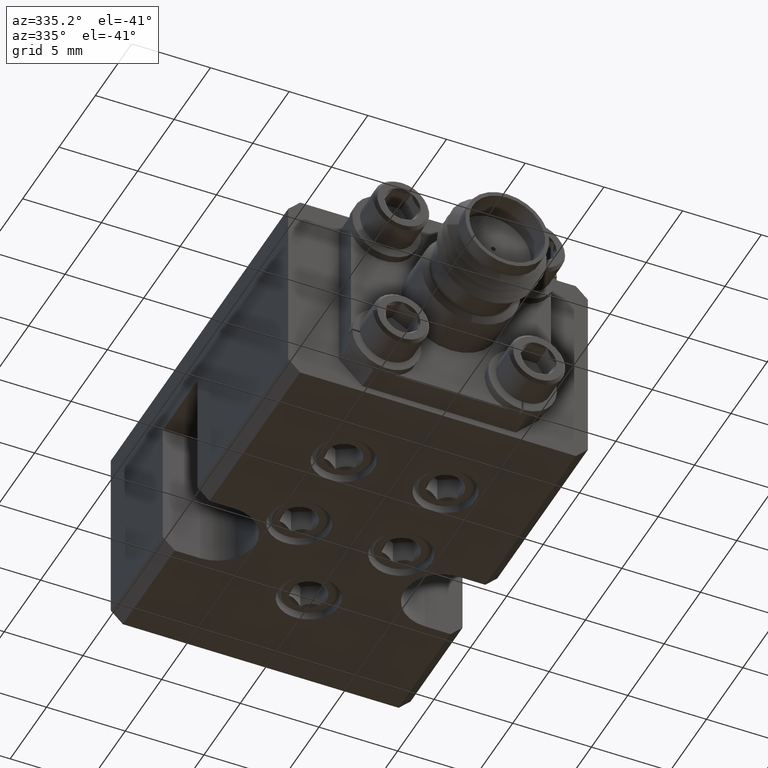
[diagram: clean part render]
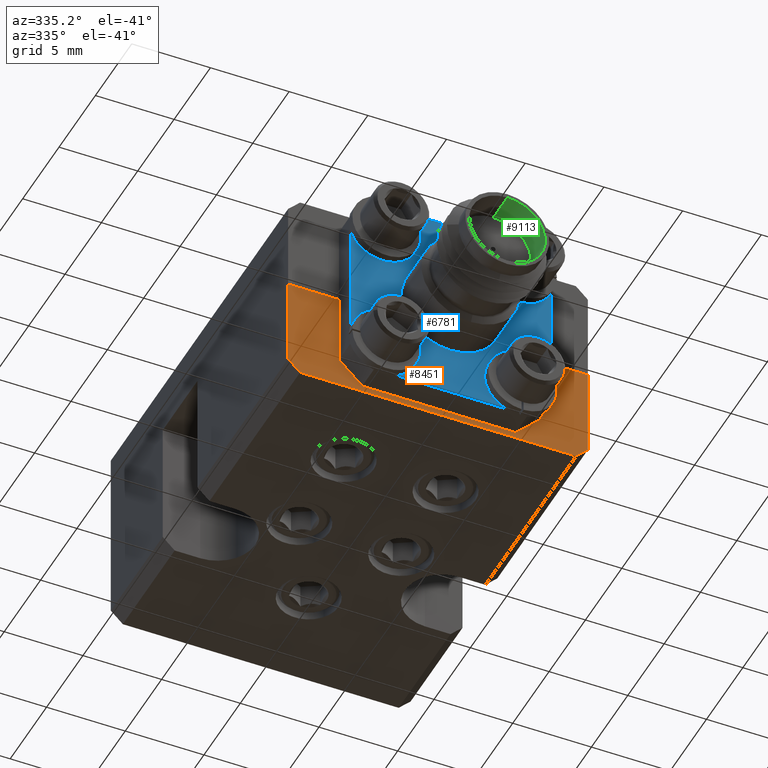
[diagram: same view with three faces highlighted in distinct colors, each labeled with its STEP entity id]
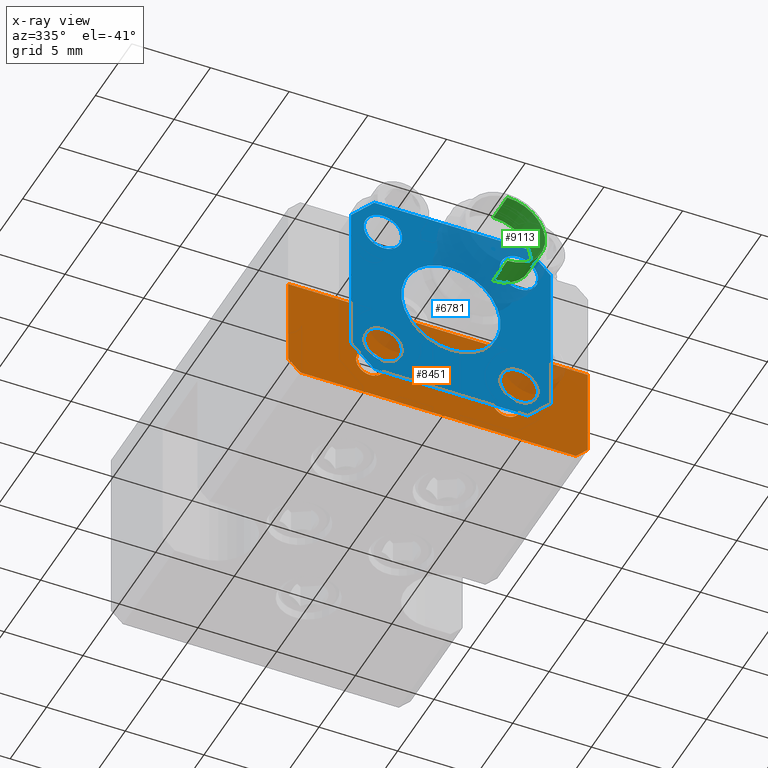
[diagram: x-ray of the same camera — body ghosted, the three highlighted faces saturated]
A machine part, auxiliary view with three faces highlighted in distinct colors.
The next image is the same camera in x-ray (body ghosted, the three faces saturated) — at least one of them is partly hidden behind the body in this view.
Their STEP definitions:

[orange] entity #8451 — the highlighted planar face has unit normal (0, 1, 0).
#103 = ORIENTED_EDGE ( 'NONE', *, *, #4005, .F. ) ;
#147 = VECTOR ( 'NONE', #2920, 39.37007874015748900 ) ;
#368 = CARTESIAN_POINT ( 'NONE',  ( -0.1700000000000001200, -0.4800000000000000900, -0.1989999999999999500 ) ) ;
#958 = LINE ( 'NONE', #3008, #1194 ) ;
#1053 = VERTEX_POINT ( 'NONE', #3262 ) ;
#1114 = VERTEX_POINT ( 'NONE', #2573 ) ;
#1141 = CARTESIAN_POINT ( 'NONE',  ( 0.1699999999999999300, -0.4800000000000000900, -0.1290000000000000000 ) ) ;
#1194 = VECTOR ( 'NONE', #5491, 39.37007874015748100 ) ;
#1424 = VERTEX_POINT ( 'NONE', #9617 ) ;
#1466 = EDGE_CURVE ( 'NONE', #6864, #3572, #2452, .T. ) ;
#1727 = AXIS2_PLACEMENT_3D ( 'NONE', #10114, #2250, #2149 ) ;
#1811 = CIRCLE ( 'NONE', #5899, 0.03499999999999996900 ) ;
#2131 = LINE ( 'NONE', #4830, #5337 ) ;
#2149 = DIRECTION ( 'NONE',  ( 0.0000000000000000000, 0.0000000000000000000, 1.000000000000000000 ) ) ;
#2250 = DIRECTION ( 'NONE',  ( -1.848892746611746400E-032, -1.000000000000000000, -2.775557561562888900E-017 ) ) ;
#2278 = EDGE_LOOP ( 'NONE', ( #103, #9000, #5832, #8949, #6912, #2923 ) ) ;
#2320 = EDGE_LOOP ( 'NONE', ( #7623, #3317 ) ) ;
#2452 = LINE ( 'NONE', #2891, #147 ) ;
#2573 = CARTESIAN_POINT ( 'NONE',  ( 0.3749999999999999400, -0.4800000000000001500, -0.2249999999999997600 ) ) ;
#2694 = EDGE_CURVE ( 'NONE', #6876, #10037, #5284, .T. ) ;
#2849 = DIRECTION ( 'NONE',  ( -1.000000000000000000, 1.821231995776175500E-016, 5.054934237236834900E-033 ) ) ;
#2891 = CARTESIAN_POINT ( 'NONE',  ( -0.3450000000000000800, -0.4799999999999999800, -0.2549999999999999500 ) ) ;
#2908 = FACE_BOUND ( 'NONE', #2320, .T. ) ;
#2920 = DIRECTION ( 'NONE',  ( 0.7071067811865459100, -1.146338099993378800E-016, -0.7071067811865490200 ) ) ;
#2923 = ORIENTED_EDGE ( 'NONE', *, *, #1466, .T. ) ;
#2928 = EDGE_CURVE ( 'NONE', #6864, #1053, #6489, .T. ) ;
#3008 = CARTESIAN_POINT ( 'NONE',  ( -0.3750000000000001100, -0.4799999999999999800, -0.2550000000000000000 ) ) ;
#3072 = CARTESIAN_POINT ( 'NONE',  ( -0.1700000000000001200, -0.4800000000000000900, -0.1639999999999999800 ) ) ;
#3262 = CARTESIAN_POINT ( 'NONE',  ( -0.3750000000000001100, -0.4799999999999999800, -1.332267629550186700E-017 ) ) ;
#3317 = ORIENTED_EDGE ( 'NONE', *, *, #3320, .F. ) ;
#3320 = EDGE_CURVE ( 'NONE', #1424, #7986, #1811, .T. ) ;
#3518 = ORIENTED_EDGE ( 'NONE', *, *, #5819, .F. ) ;
#3572 = VERTEX_POINT ( 'NONE', #3831 ) ;
#3616 = CARTESIAN_POINT ( 'NONE',  ( 0.3449999999999998100, -0.4800000000000001500, -0.2550000000000000000 ) ) ;
#3831 = CARTESIAN_POINT ( 'NONE',  ( -0.3450000000000000300, -0.4799999999999999800, -0.2550000000000000000 ) ) ;
#3904 = DIRECTION ( 'NONE',  ( 0.0000000000000000000, 0.0000000000000000000, 1.000000000000000000 ) ) ;
#4005 = EDGE_CURVE ( 'NONE', #5421, #3572, #958, .T. ) ;
#4229 = CARTESIAN_POINT ( 'NONE',  ( -0.1700000000000001200, -0.4800000000000000900, -0.1290000000000000000 ) ) ;
#4282 = VECTOR ( 'NONE', #5813, 39.37007874015748100 ) ;
#4357 = CARTESIAN_POINT ( 'NONE',  ( 0.1699999999999999300, -0.4800000000000000900, -0.1639999999999999800 ) ) ;
#4524 = AXIS2_PLACEMENT_3D ( 'NONE', #4940, #8908, #8800 ) ;
#4583 = CARTESIAN_POINT ( 'NONE',  ( 0.3749999999999999400, -0.4800000000000001500, -1.332267629550187000E-017 ) ) ;
#4830 = CARTESIAN_POINT ( 'NONE',  ( 0.3749999999999999400, -0.4800000000000001500, -0.2550000000000000000 ) ) ;
#4940 = CARTESIAN_POINT ( 'NONE',  ( -0.3750000000000001100, -0.4799999999999999800, -0.2550000000000000000 ) ) ;
#5071 = DIRECTION ( 'NONE',  ( 0.0000000000000000000, 0.0000000000000000000, 1.000000000000000000 ) ) ;
#5073 = CIRCLE ( 'NONE', #9933, 0.03499999999999996900 ) ;
#5082 = CARTESIAN_POINT ( 'NONE',  ( -0.3750000000000001100, -0.4799999999999999800, -0.2249999999999997600 ) ) ;
#5168 = DIRECTION ( 'NONE',  ( 0.7071067811865459100, -1.429272888661102300E-016, 0.7071067811865490200 ) ) ;
#5284 = CIRCLE ( 'NONE', #8077, 0.03499999999999996900 ) ;
#5337 = VECTOR ( 'NONE', #5562, 39.37007874015748100 ) ;
#5421 = VERTEX_POINT ( 'NONE', #9583 ) ;
#5442 = EDGE_CURVE ( 'NONE', #1114, #7704, #2131, .T. ) ;
#5491 = DIRECTION ( 'NONE',  ( -1.000000000000000000, 1.821231995776175500E-016, 5.054934237236834900E-033 ) ) ;
#5562 = DIRECTION ( 'NONE',  ( -4.513000746678564400E-017, -2.000651077005296400E-017, 1.000000000000000000 ) ) ;
#5813 = DIRECTION ( 'NONE',  ( -4.513000746678564400E-017, -2.000651077005296400E-017, 1.000000000000000000 ) ) ;
#5819 = EDGE_CURVE ( 'NONE', #10037, #6876, #7437, .T. ) ;
#5832 = ORIENTED_EDGE ( 'NONE', *, *, #5442, .T. ) ;
#5869 = EDGE_CURVE ( 'NONE', #5421, #1114, #8189, .T. ) ;
#5899 = AXIS2_PLACEMENT_3D ( 'NONE', #8220, #9781, #5071 ) ;
#6085 = VECTOR ( 'NONE', #5168, 39.37007874015748900 ) ;
#6365 = VECTOR ( 'NONE', #2849, 39.37007874015748100 ) ;
#6489 = LINE ( 'NONE', #8208, #4282 ) ;
#6574 = ORIENTED_EDGE ( 'NONE', *, *, #2694, .F. ) ;
#6862 = FACE_OUTER_BOUND ( 'NONE', #2278, .T. ) ;
#6864 = VERTEX_POINT ( 'NONE', #5082 ) ;
#6876 = VERTEX_POINT ( 'NONE', #368 ) ;
#6891 = EDGE_CURVE ( 'NONE', #7986, #1424, #5073, .T. ) ;
#6912 = ORIENTED_EDGE ( 'NONE', *, *, #2928, .F. ) ;
#7394 = PLANE ( 'NONE',  #4524 ) ;
#7437 = CIRCLE ( 'NONE', #1727, 0.03499999999999996900 ) ;
#7623 = ORIENTED_EDGE ( 'NONE', *, *, #6891, .F. ) ;
#7704 = VERTEX_POINT ( 'NONE', #4583 ) ;
#7986 = VERTEX_POINT ( 'NONE', #1141 ) ;
#8020 = EDGE_CURVE ( 'NONE', #7704, #1053, #8710, .T. ) ;
#8077 = AXIS2_PLACEMENT_3D ( 'NONE', #3072, #8624, #3904 ) ;
#8189 = LINE ( 'NONE', #3616, #6085 ) ;
#8208 = CARTESIAN_POINT ( 'NONE',  ( -0.3750000000000001100, -0.4799999999999999800, -0.2550000000000000000 ) ) ;
#8220 = CARTESIAN_POINT ( 'NONE',  ( 0.1699999999999999300, -0.4800000000000000900, -0.1639999999999999800 ) ) ;
#8451 = ADVANCED_FACE ( 'NONE', ( #2908, #8589, #6862 ), #7394, .F. ) ;
#8589 = FACE_BOUND ( 'NONE', #8825, .T. ) ;
#8624 = DIRECTION ( 'NONE',  ( -1.848892746611746400E-032, -1.000000000000000000, -2.775557561562888900E-017 ) ) ;
#8710 = LINE ( 'NONE', #10054, #6365 ) ;
#8800 = DIRECTION ( 'NONE',  ( 1.000000000000000000, -1.821231995776175500E-016, -5.054934237236834900E-033 ) ) ;
#8825 = EDGE_LOOP ( 'NONE', ( #3518, #6574 ) ) ;
#8908 = DIRECTION ( 'NONE',  ( 1.821231995776175500E-016, 1.000000000000000000, 2.775557561562888900E-017 ) ) ;
#8949 = ORIENTED_EDGE ( 'NONE', *, *, #8020, .T. ) ;
#9000 = ORIENTED_EDGE ( 'NONE', *, *, #5869, .T. ) ;
#9583 = CARTESIAN_POINT ( 'NONE',  ( 0.3449999999999995800, -0.4800000000000001500, -0.2550000000000000000 ) ) ;
#9617 = CARTESIAN_POINT ( 'NONE',  ( 0.1699999999999999300, -0.4800000000000000900, -0.1989999999999999500 ) ) ;
#9761 = DIRECTION ( 'NONE',  ( -1.848892746611746400E-032, -1.000000000000000000, -2.775557561562888900E-017 ) ) ;
#9781 = DIRECTION ( 'NONE',  ( -1.848892746611746400E-032, -1.000000000000000000, -2.775557561562888900E-017 ) ) ;
#9870 = DIRECTION ( 'NONE',  ( 0.0000000000000000000, 0.0000000000000000000, 1.000000000000000000 ) ) ;
#9933 = AXIS2_PLACEMENT_3D ( 'NONE', #4357, #9761, #9870 ) ;
#10037 = VERTEX_POINT ( 'NONE', #4229 ) ;
#10054 = CARTESIAN_POINT ( 'NONE',  ( -0.3750000000000001100, -0.4799999999999999800, -1.332267629550186700E-017 ) ) ;
#10114 = CARTESIAN_POINT ( 'NONE',  ( -0.1700000000000001200, -0.4800000000000000900, -0.1639999999999999800 ) ) ;

[blue] entity #6781 — the highlighted planar face has unit normal (0, -1, -0).
#191 = ORIENTED_EDGE ( 'NONE', *, *, #1250, .T. ) ;
#230 = AXIS2_PLACEMENT_3D ( 'NONE', #4163, #6543, #925 ) ;
#258 = CARTESIAN_POINT ( 'NONE',  ( 0.2209708691207965500, -0.5500000000000002700, -0.2149708691207961300 ) ) ;
#299 = DIRECTION ( 'NONE',  ( 1.321581254823321900E-017, -1.000000000000000000, -2.151824724185872000E-017 ) ) ;
#398 = DIRECTION ( 'NONE',  ( 1.321581254823321900E-017, -1.000000000000000000, -2.151824724185872000E-017 ) ) ;
#402 = CARTESIAN_POINT ( 'NONE',  ( 0.2500000000000002800, -0.5500000000000002700, 0.2559999999999999500 ) ) ;
#523 = CARTESIAN_POINT ( 'NONE',  ( 1.381650813764529300E-016, -0.5500000000000002700, 0.1300000000000000000 ) ) ;
#534 = EDGE_CURVE ( 'NONE', #2679, #7676, #6793, .T. ) ;
#565 = CIRCLE ( 'NONE', #7421, 0.04800000000000004300 ) ;
#597 = ORIENTED_EDGE ( 'NONE', *, *, #1435, .F. ) ;
#624 = CARTESIAN_POINT ( 'NONE',  ( 0.2209708691207962500, -0.5500000000000002700, 0.2269708691207961100 ) ) ;
#636 = AXIS2_PLACEMENT_3D ( 'NONE', #5084, #398, #6607 ) ;
#690 = DIRECTION ( 'NONE',  ( 0.0000000000000000000, -2.151824724185871400E-017, 1.000000000000000000 ) ) ;
#885 = CIRCLE ( 'NONE', #9311, 0.04800000000000004300 ) ;
#903 = CARTESIAN_POINT ( 'NONE',  ( -0.2499999999999997200, -0.5500000000000002700, -0.1859417382415923500 ) ) ;
#925 = DIRECTION ( 'NONE',  ( 0.0000000000000000000, 0.0000000000000000000, -1.000000000000000000 ) ) ;
#941 = ORIENTED_EDGE ( 'NONE', *, *, #9801, .F. ) ;
#942 = EDGE_CURVE ( 'NONE', #4968, #7197, #1125, .T. ) ;
#954 = CARTESIAN_POINT ( 'NONE',  ( -0.1919417382415919400, -0.5500000000000002700, 0.2559999999999999500 ) ) ;
#959 = VERTEX_POINT ( 'NONE', #5543 ) ;
#1017 = ORIENTED_EDGE ( 'NONE', *, *, #6196, .T. ) ;
#1041 = FACE_BOUND ( 'NONE', #2564, .T. ) ;
#1125 = LINE ( 'NONE', #7100, #7910 ) ;
#1189 = ORIENTED_EDGE ( 'NONE', *, *, #4449, .F. ) ;
#1209 = CIRCLE ( 'NONE', #6839, 0.04800000000000000800 ) ;
#1250 = EDGE_CURVE ( 'NONE', #10150, #9388, #3941, .T. ) ;
#1326 = DIRECTION ( 'NONE',  ( 1.321581254823321900E-017, -1.000000000000000000, -2.151824724185872000E-017 ) ) ;
#1340 = CARTESIAN_POINT ( 'NONE',  ( -0.1699999999999998200, -0.5500000000000002700, -0.2120000000000000200 ) ) ;
#1346 = DIRECTION ( 'NONE',  ( 0.0000000000000000000, 0.0000000000000000000, -1.000000000000000000 ) ) ;
#1354 = LINE ( 'NONE', #5965, #9332 ) ;
#1435 = EDGE_CURVE ( 'NONE', #10066, #959, #885, .T. ) ;
#1499 = ORIENTED_EDGE ( 'NONE', *, *, #7585, .F. ) ;
#1695 = DIRECTION ( 'NONE',  ( 1.321581254823321900E-017, -1.000000000000000000, -2.151824724185872000E-017 ) ) ;
#1764 = LINE ( 'NONE', #1777, #2508 ) ;
#1777 = CARTESIAN_POINT ( 'NONE',  ( 0.2500000000000002800, -0.5500000000000002700, -0.2440000000000000500 ) ) ;
#1954 = CARTESIAN_POINT ( 'NONE',  ( 0.2500000000000002800, -0.5500000000000002700, 0.1979417382415921700 ) ) ;
#1972 = CARTESIAN_POINT ( 'NONE',  ( -0.1699999999999998200, -0.5500000000000002700, -0.1640000000000000100 ) ) ;
#1976 = DIRECTION ( 'NONE',  ( 0.7071067811865470200, -5.870707872221064600E-018, 0.7071067811865479100 ) ) ;
#2029 = DIRECTION ( 'NONE',  ( 0.0000000000000000000, 2.151824724185871400E-017, -1.000000000000000000 ) ) ;
#2091 = CARTESIAN_POINT ( 'NONE',  ( 0.1700000000000001800, -0.5500000000000002700, 0.1760000000000000500 ) ) ;
#2124 = CIRCLE ( 'NONE', #230, 0.1240000000000000000 ) ;
#2211 = CARTESIAN_POINT ( 'NONE',  ( 0.2500000000000002800, -0.5500000000000002700, -0.2440000000000000500 ) ) ;
#2221 = EDGE_CURVE ( 'NONE', #3808, #4352, #8726, .T. ) ;
#2247 = CARTESIAN_POINT ( 'NONE',  ( -0.2499999999999997200, -0.5500000000000002700, 0.1979417382415921100 ) ) ;
#2397 = ORIENTED_EDGE ( 'NONE', *, *, #7692, .F. ) ;
#2401 = CARTESIAN_POINT ( 'NONE',  ( -0.1699999999999998200, -0.5500000000000002700, 0.2239999999999999800 ) ) ;
#2457 = VERTEX_POINT ( 'NONE', #523 ) ;
#2508 = VECTOR ( 'NONE', #4866, 39.37007874015748100 ) ;
#2564 = EDGE_LOOP ( 'NONE', ( #1189, #8108 ) ) ;
#2660 = DIRECTION ( 'NONE',  ( 1.321581254823321900E-017, -1.000000000000000000, -2.151824724185872000E-017 ) ) ;
#2679 = VERTEX_POINT ( 'NONE', #7006 ) ;
#2828 = AXIS2_PLACEMENT_3D ( 'NONE', #1972, #2660, #8175 ) ;
#2958 = DIRECTION ( 'NONE',  ( 0.7071067811865474600, 2.456068921571298500E-017, -0.7071067811865474600 ) ) ;
#3028 = ORIENTED_EDGE ( 'NONE', *, *, #942, .F. ) ;
#3196 = ORIENTED_EDGE ( 'NONE', *, *, #4588, .F. ) ;
#3261 = VERTEX_POINT ( 'NONE', #3822 ) ;
#3326 = CARTESIAN_POINT ( 'NONE',  ( -0.1699999999999998200, -0.5500000000000002700, 0.1759999999999999900 ) ) ;
#3554 = EDGE_CURVE ( 'NONE', #3808, #6850, #4140, .T. ) ;
#3589 = VERTEX_POINT ( 'NONE', #2247 ) ;
#3657 = ORIENTED_EDGE ( 'NONE', *, *, #5915, .F. ) ;
#3708 = CIRCLE ( 'NONE', #4943, 0.04800000000000002200 ) ;
#3793 = LINE ( 'NONE', #624, #9215 ) ;
#3808 = VERTEX_POINT ( 'NONE', #7376 ) ;
#3822 = CARTESIAN_POINT ( 'NONE',  ( 1.533507016858801000E-016, -0.5500000000000002700, -0.1179999999999999800 ) ) ;
#3890 = EDGE_LOOP ( 'NONE', ( #597, #6568 ) ) ;
#3941 = LINE ( 'NONE', #402, #4054 ) ;
#3968 = CARTESIAN_POINT ( 'NONE',  ( 0.1700000000000001800, -0.5500000000000002700, -0.1639999999999999800 ) ) ;
#4054 = VECTOR ( 'NONE', #10026, 39.37007874015748100 ) ;
#4119 = DIRECTION ( 'NONE',  ( 1.321581254823321700E-017, -1.000000000000000000, -2.151824724185871400E-017 ) ) ;
#4140 = LINE ( 'NONE', #2211, #5504 ) ;
#4158 = ORIENTED_EDGE ( 'NONE', *, *, #4576, .F. ) ;
#4163 = CARTESIAN_POINT ( 'NONE',  ( 1.374514274988483200E-016, -0.5500000000000002700, 0.006000000000000016600 ) ) ;
#4217 = FACE_BOUND ( 'NONE', #6951, .T. ) ;
#4263 = EDGE_LOOP ( 'NONE', ( #1499, #7852, #3028, #1017, #6347, #6763, #2397, #191 ) ) ;
#4352 = VERTEX_POINT ( 'NONE', #6996 ) ;
#4449 = EDGE_CURVE ( 'NONE', #6252, #6073, #5112, .T. ) ;
#4456 = FACE_BOUND ( 'NONE', #7871, .T. ) ;
#4576 = EDGE_CURVE ( 'NONE', #7676, #2679, #5605, .T. ) ;
#4588 = EDGE_CURVE ( 'NONE', #9487, #4796, #8206, .T. ) ;
#4696 = VECTOR ( 'NONE', #2029, 39.37007874015748100 ) ;
#4796 = VERTEX_POINT ( 'NONE', #7746 ) ;
#4866 = DIRECTION ( 'NONE',  ( 1.000000000000000000, 1.321581254823320800E-017, 1.365923996832131600E-016 ) ) ;
#4943 = AXIS2_PLACEMENT_3D ( 'NONE', #8510, #9290, #9321 ) ;
#4968 = VERTEX_POINT ( 'NONE', #9681 ) ;
#5027 = AXIS2_PLACEMENT_3D ( 'NONE', #3326, #299, #8053 ) ;
#5084 = CARTESIAN_POINT ( 'NONE',  ( -0.1699999999999998200, -0.5500000000000002700, -0.1640000000000000100 ) ) ;
#5112 = CIRCLE ( 'NONE', #5027, 0.04800000000000000800 ) ;
#5118 = EDGE_CURVE ( 'NONE', #959, #10066, #565, .T. ) ;
#5242 = CARTESIAN_POINT ( 'NONE',  ( 1.374514274988483200E-016, -0.5500000000000002700, 0.006000000000000016600 ) ) ;
#5504 = VECTOR ( 'NONE', #690, 39.37007874015748100 ) ;
#5543 = CARTESIAN_POINT ( 'NONE',  ( 0.1700000000000001800, -0.5500000000000002700, -0.1159999999999999500 ) ) ;
#5587 = DIRECTION ( 'NONE',  ( 0.0000000000000000000, 0.0000000000000000000, -1.000000000000000000 ) ) ;
#5605 = CIRCLE ( 'NONE', #636, 0.04800000000000000800 ) ;
#5673 = PLANE ( 'NONE',  #7628 ) ;
#5698 = CARTESIAN_POINT ( 'NONE',  ( -0.1699999999999998200, -0.5500000000000002700, 0.1759999999999999900 ) ) ;
#5915 = EDGE_CURVE ( 'NONE', #2457, #3261, #5951, .T. ) ;
#5950 = CARTESIAN_POINT ( 'NONE',  ( -0.2499999999999997200, -0.5500000000000002700, -0.2440000000000001100 ) ) ;
#5951 = CIRCLE ( 'NONE', #6151, 0.1240000000000000000 ) ;
#5965 = CARTESIAN_POINT ( 'NONE',  ( -0.2209708691207960500, -0.5500000000000002700, 0.2269708691207959200 ) ) ;
#6048 = DIRECTION ( 'NONE',  ( 1.321581254823321900E-017, -1.000000000000000000, -2.151824724185872000E-017 ) ) ;
#6073 = VERTEX_POINT ( 'NONE', #2401 ) ;
#6151 = AXIS2_PLACEMENT_3D ( 'NONE', #5242, #1326, #6818 ) ;
#6196 = EDGE_CURVE ( 'NONE', #4968, #4352, #1764, .T. ) ;
#6252 = VERTEX_POINT ( 'NONE', #8047 ) ;
#6347 = ORIENTED_EDGE ( 'NONE', *, *, #2221, .F. ) ;
#6368 = CARTESIAN_POINT ( 'NONE',  ( 0.1700000000000001800, -0.5500000000000002700, 0.2240000000000000600 ) ) ;
#6417 = FACE_BOUND ( 'NONE', #3890, .T. ) ;
#6543 = DIRECTION ( 'NONE',  ( 1.321581254823321900E-017, -1.000000000000000000, -2.151824724185872000E-017 ) ) ;
#6568 = ORIENTED_EDGE ( 'NONE', *, *, #5118, .F. ) ;
#6603 = DIRECTION ( 'NONE',  ( 1.321581254823321900E-017, -1.000000000000000000, -2.151824724185872000E-017 ) ) ;
#6607 = DIRECTION ( 'NONE',  ( 0.0000000000000000000, 0.0000000000000000000, -1.000000000000000000 ) ) ;
#6763 = ORIENTED_EDGE ( 'NONE', *, *, #3554, .T. ) ;
#6781 = ADVANCED_FACE ( 'NONE', ( #7059, #7300, #1041, #4217, #6417, #4456 ), #5673, .T. ) ;
#6793 = CIRCLE ( 'NONE', #2828, 0.04800000000000000800 ) ;
#6818 = DIRECTION ( 'NONE',  ( 0.0000000000000000000, 0.0000000000000000000, -1.000000000000000000 ) ) ;
#6839 = AXIS2_PLACEMENT_3D ( 'NONE', #5698, #6603, #8119 ) ;
#6850 = VERTEX_POINT ( 'NONE', #1954 ) ;
#6951 = EDGE_LOOP ( 'NONE', ( #941, #3196 ) ) ;
#6993 = CARTESIAN_POINT ( 'NONE',  ( 0.1700000000000001800, -0.5500000000000002700, -0.2120000000000000200 ) ) ;
#6996 = CARTESIAN_POINT ( 'NONE',  ( 0.1919417382415925000, -0.5500000000000002700, -0.2440000000000001100 ) ) ;
#7006 = CARTESIAN_POINT ( 'NONE',  ( -0.1699999999999998200, -0.5500000000000002700, -0.1160000000000000100 ) ) ;
#7059 = FACE_OUTER_BOUND ( 'NONE', #4263, .T. ) ;
#7074 = ORIENTED_EDGE ( 'NONE', *, *, #9076, .F. ) ;
#7086 = EDGE_LOOP ( 'NONE', ( #4158, #7310 ) ) ;
#7100 = CARTESIAN_POINT ( 'NONE',  ( -0.2209708691207959700, -0.5500000000000002700, -0.2149708691207961000 ) ) ;
#7197 = VERTEX_POINT ( 'NONE', #903 ) ;
#7300 = FACE_BOUND ( 'NONE', #7086, .T. ) ;
#7310 = ORIENTED_EDGE ( 'NONE', *, *, #534, .F. ) ;
#7376 = CARTESIAN_POINT ( 'NONE',  ( 0.2500000000000002800, -0.5500000000000002700, -0.1859417382415923800 ) ) ;
#7415 = LINE ( 'NONE', #5950, #4696 ) ;
#7421 = AXIS2_PLACEMENT_3D ( 'NONE', #3968, #1695, #5587 ) ;
#7585 = EDGE_CURVE ( 'NONE', #3589, #9388, #1354, .T. ) ;
#7628 = AXIS2_PLACEMENT_3D ( 'NONE', #9590, #4119, #8873 ) ;
#7676 = VERTEX_POINT ( 'NONE', #1340 ) ;
#7692 = EDGE_CURVE ( 'NONE', #10150, #6850, #3793, .T. ) ;
#7706 = CARTESIAN_POINT ( 'NONE',  ( 0.1700000000000001800, -0.5500000000000002700, -0.1639999999999999800 ) ) ;
#7746 = CARTESIAN_POINT ( 'NONE',  ( 0.1700000000000001800, -0.5500000000000002700, 0.1280000000000000300 ) ) ;
#7852 = ORIENTED_EDGE ( 'NONE', *, *, #9803, .T. ) ;
#7871 = EDGE_LOOP ( 'NONE', ( #3657, #7074 ) ) ;
#7910 = VECTOR ( 'NONE', #9566, 39.37007874015748900 ) ;
#8047 = CARTESIAN_POINT ( 'NONE',  ( -0.1699999999999998200, -0.5500000000000002700, 0.1279999999999999700 ) ) ;
#8053 = DIRECTION ( 'NONE',  ( 0.0000000000000000000, 0.0000000000000000000, -1.000000000000000000 ) ) ;
#8086 = CARTESIAN_POINT ( 'NONE',  ( 0.1919417382415924400, -0.5500000000000002700, 0.2559999999999999500 ) ) ;
#8108 = ORIENTED_EDGE ( 'NONE', *, *, #8383, .F. ) ;
#8119 = DIRECTION ( 'NONE',  ( 0.0000000000000000000, 0.0000000000000000000, -1.000000000000000000 ) ) ;
#8175 = DIRECTION ( 'NONE',  ( 0.0000000000000000000, 0.0000000000000000000, -1.000000000000000000 ) ) ;
#8206 = CIRCLE ( 'NONE', #9576, 0.04800000000000002200 ) ;
#8383 = EDGE_CURVE ( 'NONE', #6073, #6252, #1209, .T. ) ;
#8495 = DIRECTION ( 'NONE',  ( 1.321581254823321900E-017, -1.000000000000000000, -2.151824724185872000E-017 ) ) ;
#8510 = CARTESIAN_POINT ( 'NONE',  ( 0.1700000000000001800, -0.5500000000000002700, 0.1760000000000000500 ) ) ;
#8726 = LINE ( 'NONE', #258, #9107 ) ;
#8873 = DIRECTION ( 'NONE',  ( 0.0000000000000000000, 2.151824724185871400E-017, -1.000000000000000000 ) ) ;
#9076 = EDGE_CURVE ( 'NONE', #3261, #2457, #2124, .T. ) ;
#9107 = VECTOR ( 'NONE', #9685, 39.37007874015748900 ) ;
#9214 = DIRECTION ( 'NONE',  ( 0.0000000000000000000, 0.0000000000000000000, -1.000000000000000000 ) ) ;
#9215 = VECTOR ( 'NONE', #2958, 39.37007874015748900 ) ;
#9290 = DIRECTION ( 'NONE',  ( 1.321581254823321900E-017, -1.000000000000000000, -2.151824724185872000E-017 ) ) ;
#9311 = AXIS2_PLACEMENT_3D ( 'NONE', #7706, #8495, #1346 ) ;
#9321 = DIRECTION ( 'NONE',  ( 0.0000000000000000000, 0.0000000000000000000, -1.000000000000000000 ) ) ;
#9332 = VECTOR ( 'NONE', #1976, 39.37007874015748900 ) ;
#9388 = VERTEX_POINT ( 'NONE', #954 ) ;
#9487 = VERTEX_POINT ( 'NONE', #6368 ) ;
#9566 = DIRECTION ( 'NONE',  ( -0.7071067811865474600, -2.456068921571298500E-017, 0.7071067811865474600 ) ) ;
#9576 = AXIS2_PLACEMENT_3D ( 'NONE', #2091, #6048, #9214 ) ;
#9590 = CARTESIAN_POINT ( 'NONE',  ( 1.374514274988483200E-016, -0.5500000000000002700, 0.006000000000000016600 ) ) ;
#9681 = CARTESIAN_POINT ( 'NONE',  ( -0.1919417382415918600, -0.5500000000000002700, -0.2440000000000001600 ) ) ;
#9685 = DIRECTION ( 'NONE',  ( -0.7071067811865470200, 5.870707872221064600E-018, -0.7071067811865479100 ) ) ;
#9801 = EDGE_CURVE ( 'NONE', #4796, #9487, #3708, .T. ) ;
#9803 = EDGE_CURVE ( 'NONE', #3589, #7197, #7415, .T. ) ;
#10026 = DIRECTION ( 'NONE',  ( -1.000000000000000000, -1.321581254823320800E-017, -1.365923996832131600E-016 ) ) ;
#10066 = VERTEX_POINT ( 'NONE', #6993 ) ;
#10150 = VERTEX_POINT ( 'NONE', #8086 ) ;

[green] entity #9113 — the highlighted cylindrical surface (partial cylindrical patch) has radius 2.413 mm, axis along (0, -1, -0).
#56 = AXIS2_PLACEMENT_3D ( 'NONE', #1385, #8396, #10022 ) ;
#350 = DIRECTION ( 'NONE',  ( 1.321581254823322000E-017, -1.000000000000000000, -2.151824724185872300E-017 ) ) ;
#835 = DIRECTION ( 'NONE',  ( 1.321581254823322000E-017, -1.000000000000000000, -2.151824724185872300E-017 ) ) ;
#1166 = VECTOR ( 'NONE', #350, 39.37007874015748100 ) ;
#1385 = CARTESIAN_POINT ( 'NONE',  ( 1.414822503260594600E-016, -0.8550000000000003200, 0.006000000000000010500 ) ) ;
#1915 = VERTEX_POINT ( 'NONE', #2746 ) ;
#2101 = DIRECTION ( 'NONE',  ( 0.0000000000000000000, 0.0000000000000000000, -1.000000000000000000 ) ) ;
#2183 = VERTEX_POINT ( 'NONE', #2497 ) ;
#2420 = LINE ( 'NONE', #3112, #7974 ) ;
#2497 = CARTESIAN_POINT ( 'NONE',  ( 1.526141940411264400E-016, -0.7790000000000003600, 0.1010000000000000100 ) ) ;
#2746 = CARTESIAN_POINT ( 'NONE',  ( 1.526141940411264400E-016, -0.8550000000000003200, 0.1010000000000000100 ) ) ;
#2758 = CARTESIAN_POINT ( 'NONE',  ( 1.414822503260594600E-016, -0.8550000000000003200, -0.08899999999999998200 ) ) ;
#2794 = AXIS2_PLACEMENT_3D ( 'NONE', #9919, #8442, #2101 ) ;
#3112 = CARTESIAN_POINT ( 'NONE',  ( 1.521119931642935900E-016, -0.7790000000000003600, 0.1010000000000000100 ) ) ;
#3286 = ORIENTED_EDGE ( 'NONE', *, *, #5217, .T. ) ;
#4090 = CYLINDRICAL_SURFACE ( 'NONE', #5008, 0.09499999999999998700 ) ;
#4134 = CARTESIAN_POINT ( 'NONE',  ( 1.404778485723937500E-016, -0.7790000000000003600, -0.08899999999999998200 ) ) ;
#4219 = VERTEX_POINT ( 'NONE', #4134 ) ;
#4296 = VERTEX_POINT ( 'NONE', #2758 ) ;
#4653 = EDGE_CURVE ( 'NONE', #4296, #1915, #8453, .T. ) ;
#4835 = LINE ( 'NONE', #7309, #1166 ) ;
#4850 = DIRECTION ( 'NONE',  ( 1.321581254823322000E-017, -1.000000000000000000, -2.151824724185872300E-017 ) ) ;
#5008 = AXIS2_PLACEMENT_3D ( 'NONE', #8062, #4850, #8816 ) ;
#5217 = EDGE_CURVE ( 'NONE', #4219, #4296, #4835, .T. ) ;
#5900 = EDGE_CURVE ( 'NONE', #4219, #2183, #9527, .T. ) ;
#6441 = ORIENTED_EDGE ( 'NONE', *, *, #5900, .F. ) ;
#6558 = FACE_OUTER_BOUND ( 'NONE', #7650, .T. ) ;
#7309 = CARTESIAN_POINT ( 'NONE',  ( 1.404778485723937500E-016, -0.7790000000000003600, -0.08899999999999998200 ) ) ;
#7650 = EDGE_LOOP ( 'NONE', ( #8583, #6441, #3286, #8717 ) ) ;
#7974 = VECTOR ( 'NONE', #835, 39.37007874015748100 ) ;
#8062 = CARTESIAN_POINT ( 'NONE',  ( 1.404778485723937500E-016, -0.7790000000000003600, 0.006000000000000011400 ) ) ;
#8396 = DIRECTION ( 'NONE',  ( 1.321581254823321900E-017, -1.000000000000000000, -2.151824724185872000E-017 ) ) ;
#8442 = DIRECTION ( 'NONE',  ( 1.321581254823321900E-017, -1.000000000000000000, -2.151824724185872000E-017 ) ) ;
#8453 = CIRCLE ( 'NONE', #56, 0.09499999999999998700 ) ;
#8583 = ORIENTED_EDGE ( 'NONE', *, *, #8711, .F. ) ;
#8711 = EDGE_CURVE ( 'NONE', #2183, #1915, #2420, .T. ) ;
#8717 = ORIENTED_EDGE ( 'NONE', *, *, #4653, .T. ) ;
#8816 = DIRECTION ( 'NONE',  ( 0.0000000000000000000, 0.0000000000000000000, -1.000000000000000000 ) ) ;
#9113 = ADVANCED_FACE ( 'NONE', ( #6558 ), #4090, .F. ) ;
#9527 = CIRCLE ( 'NONE', #2794, 0.09499999999999998700 ) ;
#9919 = CARTESIAN_POINT ( 'NONE',  ( 1.404778485723937500E-016, -0.7790000000000003600, 0.006000000000000011400 ) ) ;
#10022 = DIRECTION ( 'NONE',  ( 0.0000000000000000000, 0.0000000000000000000, -1.000000000000000000 ) ) ;